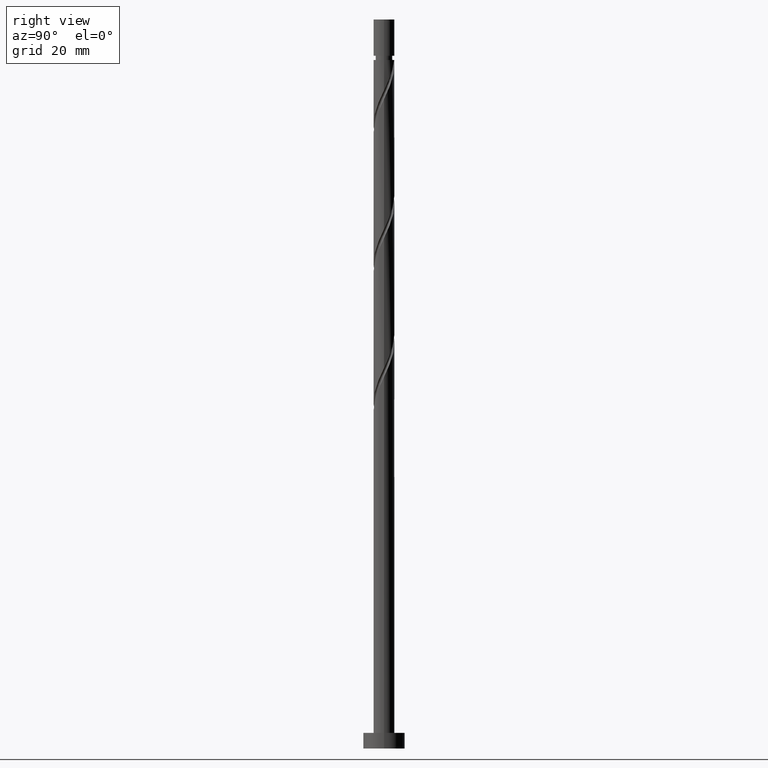
[diagram: clean part render]
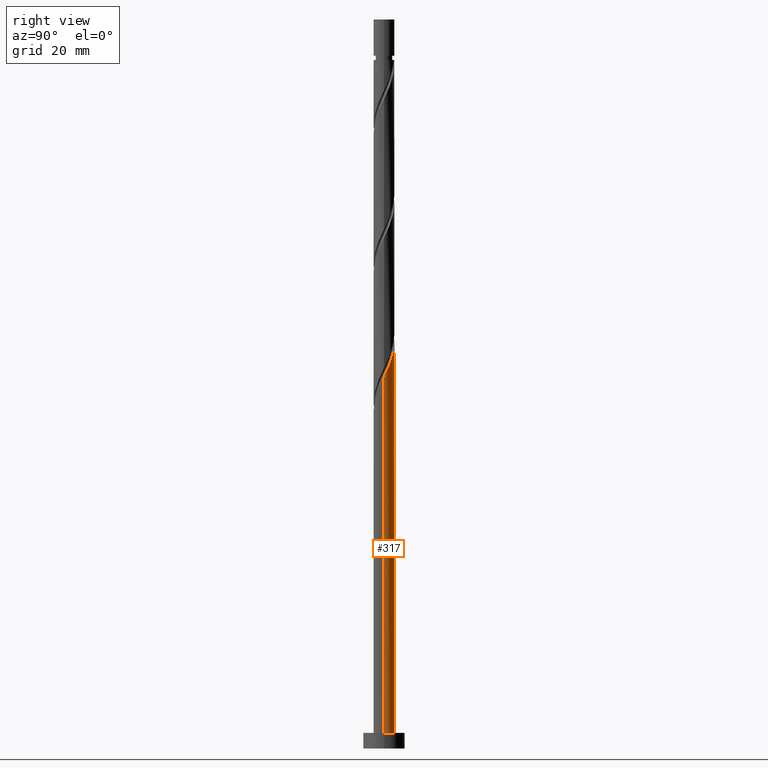
[diagram: same view with one face highlighted and labeled with its STEP entity id]
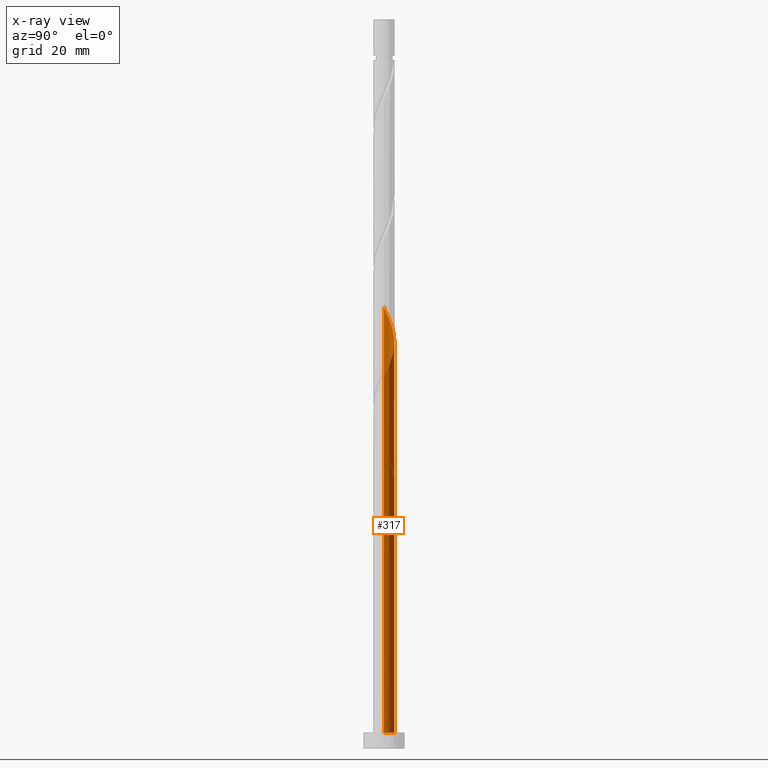
[diagram: x-ray of the same camera — body ghosted, the highlighted face saturated]
A machine part, right view. The second image highlights one B-rep face of the part: STEP entity #317.
The next image is the same camera in x-ray: the body ghosted, the highlighted face saturated — about 0% of this face is hidden behind the body in this view.
In plain terms, the highlighted cylindrical surface (edge-blend (fillet) strip) has radius 2 mm, axis along (-0, -0, -1).
Its self-contained STEP definition (entity closure, byte-faithful):
#33 = DIRECTION ( 'NONE',  ( -0.000000000000000000, -0.000000000000000000, -1.000000000000000000 ) ) ;
#39 = CARTESIAN_POINT ( 'NONE',  ( -1.980155124014551626, 0.4020876473299558329, 58.89078424589591521 ) ) ;
#43 =( BOUNDED_CURVE ( )  B_SPLINE_CURVE ( 2, ( #81, #699, #1362, #1599, #347, #463, #1220, #229, #455, #964, #1476 ),
 .UNSPECIFIED., .F., .T. ) 
 B_SPLINE_CURVE_WITH_KNOTS ( ( 3, 2, 2, 2, 2, 3 ),
 ( 0.000000000000000000, 0.01136363636363635354, 0.02272727272727270709, 0.03409090909090906063, 0.04545454545454541417, 0.05452521624175146048 ),
 .UNSPECIFIED. ) 
 CURVE ( )  GEOMETRIC_REPRESENTATION_ITEM ( )  RATIONAL_B_SPLINE_CURVE ( ( 0.9090909090909216062, 0.8998376744372238445, 0.9090909090909216062, 0.8998376744372238445, 0.9090909090909216062, 0.8998376744372238445, 0.9090909090909216062, 0.8998376744372238445, 0.9090909090909216062, 0.9017048011080012193, 0.9061101570135621230 ) ) 
 REPRESENTATION_ITEM ( '' )  );
#73 = CARTESIAN_POINT ( 'NONE',  ( -2.000000000000003109, 3.731726765522349166E-15, 84.70799643326166972 ) ) ;
#81 = CARTESIAN_POINT ( 'NONE',  ( -0.3979949748426485079, 1.960000000000002629, 52.22411757922925091 ) ) ;
#90 = ORIENTED_EDGE ( 'NONE', *, *, #766, .F. ) ;
#105 = DIRECTION ( 'NONE',  ( 0.000000000000000000, 0.000000000000000000, 1.000000000000000000 ) ) ;
#115 = CARTESIAN_POINT ( 'NONE',  ( 2.000000000000003109, 1.742469611957329727E-15, 71.37466309992835534 ) ) ;
#135 = DIRECTION ( 'NONE',  ( 1.000000000000000000, 0.000000000000000000, 0.000000000000000000 ) ) ;
#146 = CARTESIAN_POINT ( 'NONE',  ( 1.786663747202085206, 0.9436744384215546289, 73.43623879135044774 ) ) ;
#168 = CARTESIAN_POINT ( 'NONE',  ( -0.4568343776401052603, 1.968245701812301407, 54.04229939741105682 ) ) ;
#171 = CARTESIAN_POINT ( 'NONE',  ( -1.741900447066340396, 0.9827425057002947550, 82.52714788225956966 ) ) ;
#180 = VECTOR ( 'NONE', #365, 1000.000000000000000 ) ;
#229 = CARTESIAN_POINT ( 'NONE',  ( -1.883197487972274375, 0.7322950311120152156, 56.46654182165350022 ) ) ;
#232 = ORIENTED_EDGE ( 'NONE', *, *, #1282, .F. ) ;
#274 = CARTESIAN_POINT ( 'NONE',  ( 0.000000000000000000, 0.000000000000000000, 3.000000000000000000 ) ) ;
#287 = CARTESIAN_POINT ( 'NONE',  ( -2.000000000000003109, 3.731726765522349166E-15, 84.70799643326166972 ) ) ;
#303 = CARTESIAN_POINT ( 'NONE',  ( -2.000000000000002220, 0.2290578547702505352, 84.22203648029037026 ) ) ;
#317 = ADVANCED_FACE ( 'NONE', ( #1462 ), #581, .T. ) ;
#331 = EDGE_CURVE ( 'NONE', #1059, #1612, #1327, .T. ) ;
#347 = CARTESIAN_POINT ( 'NONE',  ( -1.394470680848408417, 1.433684595806967943, 54.64836000347166589 ) ) ;
#365 = DIRECTION ( 'NONE',  ( -0.000000000000000000, -0.000000000000000000, -1.000000000000000000 ) ) ;
#374 = CARTESIAN_POINT ( 'NONE',  ( -2.000000000000000000, 0.000000000000000000, 3.000000000000000000 ) ) ;
#407 = CARTESIAN_POINT ( 'NONE',  ( 0.7248413235775367225, 1.864029252891266975, 76.46654182165352154 ) ) ;
#450 = DIRECTION ( 'NONE',  ( -1.000000000000000000, 0.000000000000000000, 0.000000000000000000 ) ) ;
#452 = CARTESIAN_POINT ( 'NONE',  ( -1.448427499289741238, 1.408810338760220660, 56.46654182165350733 ) ) ;
#455 = CARTESIAN_POINT ( 'NONE',  ( -1.948211798543802997, 0.4521844623765082782, 57.07260242771410930 ) ) ;
#462 = CARTESIAN_POINT ( 'NONE',  ( -2.000000000000003109, -1.839688946530055989E-15, 58.04132976659504095 ) ) ;
#463 = CARTESIAN_POINT ( 'NONE',  ( -1.600603406160407083, 1.233189980288574406, 55.25442060953228918 ) ) ;
#507 = VERTEX_POINT ( 'NONE', #1543 ) ;
#531 = CARTESIAN_POINT ( 'NONE',  ( 0.1703224295138026645, 1.992734370156877377, 77.67866303377468284 ) ) ;
#551 = CARTESIAN_POINT ( 'NONE',  ( 0.1161895186125009721, 2.017223038501448240, 52.83017818528984577 ) ) ;
#553 = LINE ( 'NONE', #1172, #768 ) ;
#565 = CARTESIAN_POINT ( 'NONE',  ( -0.7248413235775359453, 1.864029252891264754, 54.64836000347165879 ) ) ;
#581 = CYLINDRICAL_SURFACE ( 'NONE', #845, 2.000000000000000000 ) ;
#602 = VERTEX_POINT ( 'NONE', #287 ) ;
#607 = EDGE_CURVE ( 'NONE', #602, #760, #928, .T. ) ;
#625 = CARTESIAN_POINT ( 'NONE',  ( 2.000000000000003109, 0.05755105304764657898, 71.49676110464658052 ) ) ;
#630 = ORIENTED_EDGE ( 'NONE', *, *, #982, .F. ) ;
#650 = CARTESIAN_POINT ( 'NONE',  ( -0.3979949748426485634, 1.960000000000002629, 78.89078424589591521 ) ) ;
#655 = CARTESIAN_POINT ( 'NONE',  ( 0.000000000000000000, 0.000000000000000000, 140.0000000000000000 ) ) ;
#664 = CARTESIAN_POINT ( 'NONE',  ( -1.883197487972274375, 0.7322950311120152156, 83.13320848832017873 ) ) ;
#670 = CARTESIAN_POINT ( 'NONE',  ( -0.1703224295138020539, 1.992734370156875157, 53.43623879135048327 ) ) ;
#671 = DIRECTION ( 'NONE',  ( -0.000000000000000000, -0.000000000000000000, -1.000000000000000000 ) ) ;
#672 = CARTESIAN_POINT ( 'NONE',  ( -1.948211798543802997, 0.4521844623765082782, 83.73926909438075938 ) ) ;
#693 = CARTESIAN_POINT ( 'NONE',  ( 0.000000000000000000, 0.000000000000000000, 52.22411757922926512 ) ) ;
#699 = CARTESIAN_POINT ( 'NONE',  ( -0.6798004310727973065, 1.902776961498554131, 52.83017818528985998 ) ) ;
#702 = DIRECTION ( 'NONE',  ( 0.000000000000000000, -8.673617379884026006E-15, -1.000000000000000000 ) ) ;
#722 = EDGE_CURVE ( 'NONE', #1526, #1650, #734, .T. ) ;
#734 = CIRCLE ( 'NONE', #978, 2.000000000000000000 ) ;
#748 = LINE ( 'NONE', #1124, #180 ) ;
#755 = CARTESIAN_POINT ( 'NONE',  ( -2.000000000000000444, 7.859809279687392119E-15, 59.74023872519677525 ) ) ;
#760 = VERTEX_POINT ( 'NONE', #755 ) ;
#766 = EDGE_CURVE ( 'NONE', #507, #602, #1281, .T. ) ;
#768 = VECTOR ( 'NONE', #33, 1000.000000000000000 ) ;
#784 = EDGE_CURVE ( 'NONE', #1155, #1650, #553, .T. ) ;
#803 = CARTESIAN_POINT ( 'NONE',  ( -1.883409435608316418, 0.6728810428757550088, 58.28472363983529902 ) ) ;
#804 = CARTESIAN_POINT ( 'NONE',  ( -2.000000000000000000, 0.000000000000000000, 140.0000000000000000 ) ) ;
#806 = CARTESIAN_POINT ( 'NONE',  ( 1.448427499289744569, 1.408810338760221770, 74.64836000347165168 ) ) ;
#820 = CARTESIAN_POINT ( 'NONE',  ( -0.9928482695149671855, 1.759812803970228989, 55.25442060953228918 ) ) ;
#845 = AXIS2_PLACEMENT_3D ( 'NONE', #655, #1184, #450 ) ;
#866 = ORIENTED_EDGE ( 'NONE', *, *, #607, .F. ) ;
#883 = ORIENTED_EDGE ( 'NONE', *, *, #722, .T. ) ;
#923 = CARTESIAN_POINT ( 'NONE',  ( -0.1161895186125005558, 2.017223038501450905, 78.28472363983533455 ) ) ;
#924 = ORIENTED_EDGE ( 'NONE', *, *, #331, .T. ) ;
#928 = LINE ( 'NONE', #804, #1167 ) ;
#930 = CARTESIAN_POINT ( 'NONE',  ( -0.6798004310727973065, 1.902776961498554131, 79.49684485195652428 ) ) ;
#939 = CARTESIAN_POINT ( 'NONE',  ( -1.394470680848408417, 1.433684595806967943, 81.31502667013835151 ) ) ;
#943 = CARTESIAN_POINT ( 'NONE',  ( -2.000000000000000444, 7.859809279687392119E-15, 59.74023872519677525 ) ) ;
#964 = CARTESIAN_POINT ( 'NONE',  ( -2.000000000000003997, 0.2290578547702417367, 57.55536981362373439 ) ) ;
#978 = AXIS2_PLACEMENT_3D ( 'NONE', #274, #105, #135 ) ;
#982 = EDGE_CURVE ( 'NONE', #1059, #1155, #43, .T. ) ;
#1059 = VERTEX_POINT ( 'NONE', #1598 ) ;
#1063 = CARTESIAN_POINT ( 'NONE',  ( 0.3979949748426492295, 1.960000000000000409, 52.22411757922925091 ) ) ;
#1066 = CARTESIAN_POINT ( 'NONE',  ( 1.980155124014553847, 0.4020876473299556109, 72.22411757922925801 ) ) ;
#1124 = CARTESIAN_POINT ( 'NONE',  ( 2.000000000000000000, 2.449293598294706414E-16, 140.0000000000000000 ) ) ;
#1142 = CARTESIAN_POINT ( 'NONE',  ( 1.996690616564942733, 0.1150068768444769546, 71.61805697316866315 ) ) ;
#1155 = VERTEX_POINT ( 'NONE', #462 ) ;
#1167 = VECTOR ( 'NONE', #671, 1000.000000000000000 ) ;
#1172 = CARTESIAN_POINT ( 'NONE',  ( -2.000000000000000000, 0.000000000000000000, 140.0000000000000000 ) ) ;
#1184 = DIRECTION ( 'NONE',  ( -0.000000000000000000, -0.000000000000000000, -1.000000000000000000 ) ) ;
#1187 = CARTESIAN_POINT ( 'NONE',  ( -1.188337955536409973, 1.634179211325360814, 80.70896606407777085 ) ) ;
#1191 = CARTESIAN_POINT ( 'NONE',  ( -2.000000000000000444, 0.05755105304765198437, 59.61814072047857138 ) ) ;
#1195 = CARTESIAN_POINT ( 'NONE',  ( 1.883409435608319082, 0.6728810428757550088, 72.83017818528988130 ) ) ;
#1220 = CARTESIAN_POINT ( 'NONE',  ( -1.741900447066340396, 0.9827425057002947550, 55.86048121559286983 ) ) ;
#1281 =( BOUNDED_CURVE ( )  B_SPLINE_CURVE ( 2, ( #115, #625, #1142, #1066, #1195, #146, #1303, #806, #1427, #1318, #407, #1573, #531, #923, #650, #930, #1451, #1187, #939, #1566, #171, #664, #672, #303, #73 ),
 .UNSPECIFIED., .F., .F. ) 
 B_SPLINE_CURVE_WITH_KNOTS ( ( 3, 2, 2, 2, 2, 2, 2, 2, 2, 2, 2, 2, 3 ),
 ( 0.1795252162417513564, 0.1818181818181817677, 0.1931818181818182323, 0.2045454545454545858, 0.2159090909090909394, 0.2272727272727272929, 0.2386363636363636465, 0.2500000000000000000, 0.2613636363636363535, 0.2727272727272727071, 0.2840909090909090606, 0.2954545454545454142, 0.3045252162417511066 ),
 .UNSPECIFIED. ) 
 CURVE ( )  GEOMETRIC_REPRESENTATION_ITEM ( )  RATIONAL_B_SPLINE_CURVE ( ( 0.9061101570135620120, 0.9072237824201441203, 0.9090909090909216062, 0.8998376744372238445, 0.9090909090909216062, 0.8998376744372238445, 0.9090909090909216062, 0.8998376744372238445, 0.9090909090909216062, 0.8998376744372238445, 0.9090909090909216062, 0.8998376744372238445, 0.9090909090909216062, 0.8998376744372238445, 0.9090909090909216062, 0.8998376744372238445, 0.9090909090909216062, 0.8998376744372238445, 0.9090909090909216062, 0.8998376744372238445, 0.9090909090909216062, 0.8998376744372238445, 0.9090909090909216062, 0.9017048011080015524, 0.9061101570135616790 ) ) 
 REPRESENTATION_ITEM ( '' )  );
#1282 = EDGE_CURVE ( 'NONE', #760, #1612, #1317, .T. ) ;
#1300 = AXIS2_PLACEMENT_3D ( 'NONE', #693, #702, #1358 ) ;
#1303 = CARTESIAN_POINT ( 'NONE',  ( 1.617545623245913999, 1.176242388590888144, 74.04229939741105682 ) ) ;
#1314 = CARTESIAN_POINT ( 'NONE',  ( -1.220637884402353768, 1.584311571365224047, 55.86048121559287694 ) ) ;
#1317 =( BOUNDED_CURVE ( )  B_SPLINE_CURVE ( 2, ( #943, #1191, #1586, #39, #803, #1465, #1344, #452, #1314, #820, #565, #168, #670, #551, #1063 ),
 .UNSPECIFIED., .F., .F. ) 
 B_SPLINE_CURVE_WITH_KNOTS ( ( 3, 2, 2, 2, 2, 2, 2, 3 ),
 ( 0.9295252162417515507, 0.9318181818181817677, 0.9431818181818182323, 0.9545454545454545858, 0.9659090909090909394, 0.9772727272727272929, 0.9886363636363636465, 1.000000000000000000 ),
 .UNSPECIFIED. ) 
 CURVE ( )  GEOMETRIC_REPRESENTATION_ITEM ( )  RATIONAL_B_SPLINE_CURVE ( ( 0.9061101570135574601, 0.9072237824201395684, 0.9090909090909168322, 0.8998376744372191816, 0.9090909090909168322, 0.8998376744372191816, 0.9090909090909168322, 0.8998376744372191816, 0.9090909090909168322, 0.8998376744372191816, 0.9090909090909168322, 0.8998376744372191816, 0.9090909090909168322, 0.8998376744372191816, 0.9090909090909168322 ) ) 
 REPRESENTATION_ITEM ( '' )  );
#1318 = CARTESIAN_POINT ( 'NONE',  ( 0.9928482695149680737, 1.759812803970230322, 75.86048121559289825 ) ) ;
#1327 = CIRCLE ( 'NONE', #1300, 2.000000000000000000 ) ;
#1344 = CARTESIAN_POINT ( 'NONE',  ( -1.617545623245911779, 1.176242388590887478, 57.07260242771409509 ) ) ;
#1358 = DIRECTION ( 'NONE',  ( 0.000000000000000000, 1.000000000000000000, -6.938893903907228378E-15 ) ) ;
#1362 = CARTESIAN_POINT ( 'NONE',  ( -0.9340691933046031403, 1.768478086411957362, 53.43623879135046906 ) ) ;
#1414 = ORIENTED_EDGE ( 'NONE', *, *, #1529, .T. ) ;
#1427 = CARTESIAN_POINT ( 'NONE',  ( 1.220637884402355322, 1.584311571365226046, 75.25442060953226076 ) ) ;
#1451 = CARTESIAN_POINT ( 'NONE',  ( -0.9340691933046031403, 1.768478086411957362, 80.10290545801711914 ) ) ;
#1462 = FACE_OUTER_BOUND ( 'NONE', #1536, .T. ) ;
#1465 = CARTESIAN_POINT ( 'NONE',  ( -1.786663747202082098, 0.9436744384215545178, 57.67866303377471127 ) ) ;
#1476 = CARTESIAN_POINT ( 'NONE',  ( -2.000000000000003109, -1.839688946530055989E-15, 58.04132976659504095 ) ) ;
#1485 = ORIENTED_EDGE ( 'NONE', *, *, #784, .F. ) ;
#1526 = VERTEX_POINT ( 'NONE', #1629 ) ;
#1529 = EDGE_CURVE ( 'NONE', #507, #1526, #748, .T. ) ;
#1536 = EDGE_LOOP ( 'NONE', ( #90, #1414, #883, #1485, #630, #924, #232, #866 ) ) ;
#1543 = CARTESIAN_POINT ( 'NONE',  ( 2.000000000000003109, 1.742469611957329530E-15, 71.37466309992836955 ) ) ;
#1566 = CARTESIAN_POINT ( 'NONE',  ( -1.600603406160407083, 1.233189980288574406, 81.92108727619897479 ) ) ;
#1573 = CARTESIAN_POINT ( 'NONE',  ( 0.4568343776401061485, 1.968245701812304072, 77.07260242771408798 ) ) ;
#1586 = CARTESIAN_POINT ( 'NONE',  ( -1.996690616564940512, 0.1150068768444774819, 59.49684485195651007 ) ) ;
#1598 = CARTESIAN_POINT ( 'NONE',  ( -0.3979949748426485079, 1.960000000000002629, 52.22411757922925091 ) ) ;
#1599 = CARTESIAN_POINT ( 'NONE',  ( -1.188337955536409973, 1.634179211325360814, 54.04229939741106392 ) ) ;
#1612 = VERTEX_POINT ( 'NONE', #1637 ) ;
#1629 = CARTESIAN_POINT ( 'NONE',  ( 2.000000000000000000, 2.449293598294706414E-16, 3.000000000000000000 ) ) ;
#1637 = CARTESIAN_POINT ( 'NONE',  ( 0.3979949748426492295, 1.960000000000000409, 52.22411757922925091 ) ) ;
#1650 = VERTEX_POINT ( 'NONE', #374 ) ;